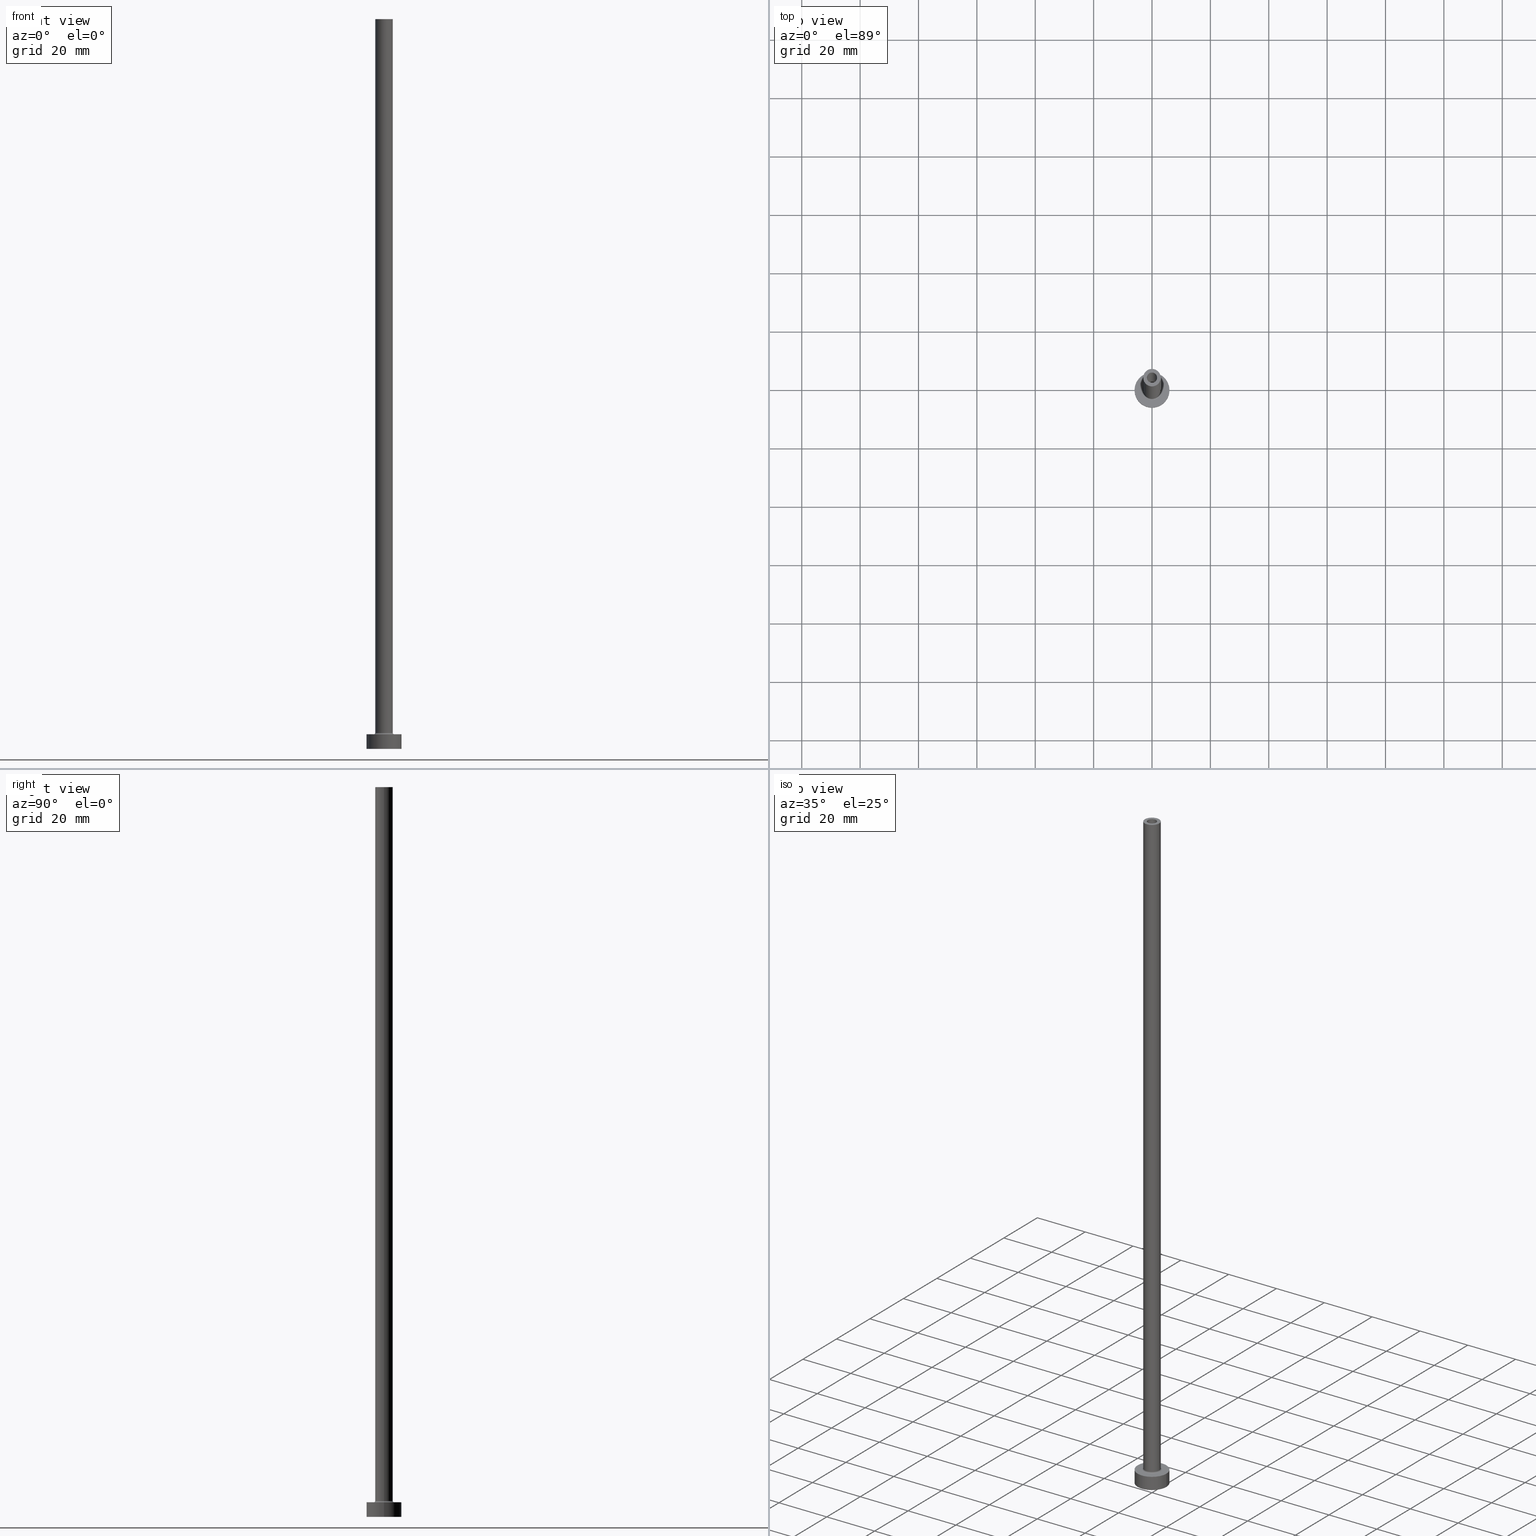
[diagram: canonical four-view strip — front | top / right | iso, engineering-drawing reading convention]
A machine part, canonical four-view strip (front | top / right | iso — engineering-drawing reading convention). The complete STEP part file that produces these views, byte-faithful:
ISO-10303-21;
HEADER;
FILE_DESCRIPTION (( 'STEP AP203' ),
    '1' );
FILE_NAME ('adbf.STEP',
    '2023-02-13T17:50:34',
    ( '' ),
    ( '' ),
    'SwSTEP 2.0',
    'SolidWorks 2019',
    '' );
FILE_SCHEMA (( 'CONFIG_CONTROL_DESIGN' ));
ENDSEC;

DATA;
#1 = DIRECTION ( 'NONE',  ( 0.000000000000000000, 0.000000000000000000, -1.000000000000000000 ) ) ;
#2 = DATE_AND_TIME ( #294, #151 ) ;
#3 = AXIS2_PLACEMENT_3D ( 'NONE', #268, #117, #261 ) ;
#4 = CC_DESIGN_APPROVAL ( #210, ( #372 ) ) ;
#5 = CARTESIAN_POINT ( 'NONE',  ( 0.000000000000000000, 0.000000000000000000, 210.3740115370177932 ) ) ;
#6 = ADVANCED_FACE ( 'NONE', ( #404 ), #184, .F. ) ;
#7 = DIRECTION ( 'NONE',  ( 1.000000000000000000, 0.000000000000000000, 0.000000000000000000 ) ) ;
#8 = ORIENTED_EDGE ( 'NONE', *, *, #103, .F. ) ;
#9 = DIRECTION ( 'NONE',  ( 0.000000000000000000, 0.000000000000000000, 1.000000000000000000 ) ) ;
#10 = VECTOR ( 'NONE', #75, 1000.000000000000000 ) ;
#11 = ADVANCED_FACE ( 'NONE', ( #321 ), #418, .T. ) ;
#12 = ORIENTED_EDGE ( 'NONE', *, *, #64, .F. ) ;
#13 = PLANE ( 'NONE',  #150 ) ;
#14 = DIRECTION ( 'NONE',  ( 0.000000000000000000, 0.000000000000000000, 1.000000000000000000 ) ) ;
#15 = AXIS2_PLACEMENT_3D ( 'NONE', #366, #163, #306 ) ;
#16 =( NAMED_UNIT ( * ) SI_UNIT ( $, .STERADIAN. ) SOLID_ANGLE_UNIT ( ) );
#17 = EDGE_CURVE ( 'NONE', #24, #392, #147, .T. ) ;
#18 = VERTEX_POINT ( 'NONE', #313 ) ;
#19 = CARTESIAN_POINT ( 'NONE',  ( 3.000000000000000444, 3.673940397442060361E-16, 250.0000000000000000 ) ) ;
#20 = DIRECTION ( 'NONE',  ( 1.000000000000000000, 0.000000000000000000, 0.000000000000000000 ) ) ;
#21 = VERTEX_POINT ( 'NONE', #45 ) ;
#22 = APPLICATION_PROTOCOL_DEFINITION ( 'international standard', 'config_control_design', 1994, #206 ) ;
#23 = ORIENTED_EDGE ( 'NONE', *, *, #434, .F. ) ;
#24 = VERTEX_POINT ( 'NONE', #244 ) ;
#25 = CIRCLE ( 'NONE', #56, 6.000000000000000888 ) ;
#26 = CC_DESIGN_DATE_AND_TIME_ASSIGNMENT ( #2, #431, ( #345 ) ) ;
#27 = DIRECTION ( 'NONE',  ( 0.000000000000000000, 0.000000000000000000, 1.000000000000000000 ) ) ;
#28 = EDGE_LOOP ( 'NONE', ( #353, #35 ) ) ;
#29 = PLANE ( 'NONE',  #443 ) ;
#30 = APPROVAL_STATUS ( 'not_yet_approved' ) ;
#31 = CARTESIAN_POINT ( 'NONE',  ( -1.750000000000000000, 0.000000000000000000, 250.0000000000000000 ) ) ;
#32 = PERSON_AND_ORGANIZATION ( #155, #222 ) ;
#33 = CYLINDRICAL_SURFACE ( 'NONE', #201, 1.750000000000000000 ) ;
#34 = EDGE_CURVE ( 'NONE', #273, #18, #47, .T. ) ;
#35 = ORIENTED_EDGE ( 'NONE', *, *, #282, .T. ) ;
#36 = CIRCLE ( 'NONE', #284, 1.750000000000000000 ) ;
#37 = APPROVAL_DATE_TIME ( #189, #141 ) ;
#38 = CYLINDRICAL_SURFACE ( 'NONE', #430, 1.899999999999999911 ) ;
#39 = CARTESIAN_POINT ( 'NONE',  ( 0.000000000000000000, 0.000000000000000000, 250.0000000000000000 ) ) ;
#40 = PERSON_AND_ORGANIZATION ( #155, #222 ) ;
#41 = ORIENTED_EDGE ( 'NONE', *, *, #116, .T. ) ;
#42 = ADVANCED_FACE ( 'NONE', ( #96, #378 ), #208, .T. ) ;
#43 = AXIS2_PLACEMENT_3D ( 'NONE', #292, #188, #185 ) ;
#44 = CARTESIAN_POINT ( 'NONE',  ( 0.000000000000000000, 0.000000000000000000, 5.500000000000005329 ) ) ;
#45 = CARTESIAN_POINT ( 'NONE',  ( -1.899999999999999911, 0.000000000000000000, 0.000000000000000000 ) ) ;
#46 = VERTEX_POINT ( 'NONE', #447 ) ;
#47 = LINE ( 'NONE', #136, #200 ) ;
#48 = CARTESIAN_POINT ( 'NONE',  ( 0.000000000000000000, 0.000000000000000000, 0.000000000000000000 ) ) ;
#49 = EDGE_CURVE ( 'NONE', #325, #78, #400, .T. ) ;
#50 = CIRCLE ( 'NONE', #319, 1.899999999999999911 ) ;
#51 = ORIENTED_EDGE ( 'NONE', *, *, #195, .F. ) ;
#52 = EDGE_LOOP ( 'NONE', ( #420, #217, #449, #51 ) ) ;
#53 = APPROVAL_DATE_TIME ( #456, #300 ) ;
#54 = CC_DESIGN_PERSON_AND_ORGANIZATION_ASSIGNMENT ( #138, #421, ( #372 ) ) ;
#55 = COORDINATED_UNIVERSAL_TIME_OFFSET ( 1, 0, .AHEAD. ) ;
#56 = AXIS2_PLACEMENT_3D ( 'NONE', #433, #365, #362 ) ;
#57 = VECTOR ( 'NONE', #220, 1000.000000000000000 ) ;
#58 = EDGE_LOOP ( 'NONE', ( #183, #346 ) ) ;
#59 = CARTESIAN_POINT ( 'NONE',  ( 0.000000000000000000, 0.000000000000000000, 250.0000000000000000 ) ) ;
#60 = CALENDAR_DATE ( 2023, 13, 2 ) ;
#61 = APPROVAL_STATUS ( 'not_yet_approved' ) ;
#62 = EDGE_LOOP ( 'NONE', ( #105, #132, #8, #455 ) ) ;
#63 = CARTESIAN_POINT ( 'NONE',  ( 1.750000000000000000, 2.143131898507867804E-16, 250.0000000000000000 ) ) ;
#64 = EDGE_CURVE ( 'NONE', #273, #46, #36, .T. ) ;
#65 = DIRECTION ( 'NONE',  ( 0.000000000000000000, 0.000000000000000000, 1.000000000000000000 ) ) ;
#66 = AXIS2_PLACEMENT_3D ( 'NONE', #74, #393, #20 ) ;
#67 = AXIS2_PLACEMENT_3D ( 'NONE', #373, #192, #330 ) ;
#68 = FACE_OUTER_BOUND ( 'NONE', #339, .T. ) ;
#69 = CALENDAR_DATE ( 2023, 13, 2 ) ;
#70 = CARTESIAN_POINT ( 'NONE',  ( -3.500000000000000444, 4.286263797015737088E-16, 5.000000000000002665 ) ) ;
#71 = ORIENTED_EDGE ( 'NONE', *, *, #251, .F. ) ;
#72 = DIRECTION ( 'NONE',  ( -1.000000000000000000, 0.000000000000000000, 0.000000000000000000 ) ) ;
#73 = DIRECTION ( 'NONE',  ( -0.000000000000000000, -0.000000000000000000, -1.000000000000000000 ) ) ;
#74 = CARTESIAN_POINT ( 'NONE',  ( 0.000000000000000000, 0.000000000000000000, 205.0000000000000284 ) ) ;
#75 = DIRECTION ( 'NONE',  ( -0.000000000000000000, -0.000000000000000000, -1.000000000000000000 ) ) ;
#76 = EDGE_CURVE ( 'NONE', #317, #262, #178, .T. ) ;
#77 = CARTESIAN_POINT ( 'NONE',  ( -3.000000000000000444, 0.000000000000000000, 250.0000000000000000 ) ) ;
#78 = VERTEX_POINT ( 'NONE', #89 ) ;
#79 = CARTESIAN_POINT ( 'NONE',  ( 6.000000000000000888, 7.347880794884120722E-16, 5.000000000000000000 ) ) ;
#80 = VECTOR ( 'NONE', #405, 1000.000000000000000 ) ;
#81 = APPROVAL_PERSON_ORGANIZATION ( #389, #300, #248 ) ;
#82 = CYLINDRICAL_SURFACE ( 'NONE', #380, 1.899999999999999911 ) ;
#83 = DIRECTION ( 'NONE',  ( 1.000000000000000000, 0.000000000000000000, 0.000000000000000000 ) ) ;
#84 = COORDINATED_UNIVERSAL_TIME_OFFSET ( 1, 0, .AHEAD. ) ;
#85 = DIRECTION ( 'NONE',  ( -1.000000000000000000, 0.000000000000000000, 0.000000000000000000 ) ) ;
#86 = CARTESIAN_POINT ( 'NONE',  ( 0.000000000000000000, 0.000000000000000000, 250.0000000000000000 ) ) ;
#87 = ADVANCED_FACE ( 'NONE', ( #239 ), #249, .T. ) ;
#88 = CIRCLE ( 'NONE', #3, 1.899999999999999911 ) ;
#89 = CARTESIAN_POINT ( 'NONE',  ( -6.000000000000000888, 0.000000000000000000, 0.000000000000000000 ) ) ;
#90 = DIRECTION ( 'NONE',  ( 0.000000000000000000, 0.000000000000000000, -1.000000000000000000 ) ) ;
#91 = ORIENTED_EDGE ( 'NONE', *, *, #287, .T. ) ;
#92 = EDGE_CURVE ( 'NONE', #111, #390, #265, .T. ) ;
#93 = CARTESIAN_POINT ( 'NONE',  ( 0.000000000000000000, 0.000000000000000000, 5.500000000000005329 ) ) ;
#94 = DIRECTION ( 'NONE',  ( -0.000000000000000000, -0.000000000000000000, -1.000000000000000000 ) ) ;
#95 = DIRECTION ( 'NONE',  ( 1.000000000000000000, 0.000000000000000000, 0.000000000000000000 ) ) ;
#96 = FACE_BOUND ( 'NONE', #280, .T. ) ;
#97 = EDGE_LOOP ( 'NONE', ( #139, #144, #350, #225 ) ) ;
#98 = AXIS2_PLACEMENT_3D ( 'NONE', #157, #398, #289 ) ;
#99 = AXIS2_PLACEMENT_3D ( 'NONE', #182, #65, #120 ) ;
#100 = CARTESIAN_POINT ( 'NONE',  ( 0.000000000000000000, 0.000000000000000000, 0.000000000000000000 ) ) ;
#101 = APPROVAL_STATUS ( 'not_yet_approved' ) ;
#102 = DIRECTION ( 'NONE',  ( 0.000000000000000000, 0.000000000000000000, 1.000000000000000000 ) ) ;
#103 = EDGE_CURVE ( 'NONE', #18, #423, #236, .T. ) ;
#104 = DIRECTION ( 'NONE',  ( 1.000000000000000000, 0.000000000000000000, 0.000000000000000000 ) ) ;
#105 = ORIENTED_EDGE ( 'NONE', *, *, #64, .T. ) ;
#106 = AXIS2_PLACEMENT_3D ( 'NONE', #424, #293, #233 ) ;
#107 = VERTEX_POINT ( 'NONE', #264 ) ;
#108 = COORDINATED_UNIVERSAL_TIME_OFFSET ( 1, 0, .AHEAD. ) ;
#109 = CYLINDRICAL_SURFACE ( 'NONE', #231, 3.000000000000000444 ) ;
#110 = ORIENTED_EDGE ( 'NONE', *, *, #205, .F. ) ;
#111 = VERTEX_POINT ( 'NONE', #197 ) ;
#112 = CARTESIAN_POINT ( 'NONE',  ( 0.000000000000000000, 0.000000000000000000, 0.000000000000000000 ) ) ;
#113 = DIRECTION ( 'NONE',  ( 1.000000000000000000, 0.000000000000000000, 0.000000000000000000 ) ) ;
#114 = AXIS2_PLACEMENT_3D ( 'NONE', #100, #247, #213 ) ;
#115 = LOCAL_TIME ( 18, 50, 34.00000000000000000, #352 ) ;
#116 = EDGE_CURVE ( 'NONE', #390, #78, #125, .T. ) ;
#117 = DIRECTION ( 'NONE',  ( 0.000000000000000000, 0.000000000000000000, 1.000000000000000000 ) ) ;
#118 = COORDINATED_UNIVERSAL_TIME_OFFSET ( 1, 0, .AHEAD. ) ;
#119 = FACE_OUTER_BOUND ( 'NONE', #356, .T. ) ;
#120 = DIRECTION ( 'NONE',  ( 1.000000000000000000, 0.000000000000000000, 0.000000000000000000 ) ) ;
#121 = DIRECTION ( 'NONE',  ( 1.000000000000000000, 0.000000000000000000, 0.000000000000000000 ) ) ;
#122 = AXIS2_PLACEMENT_3D ( 'NONE', #381, #211, #308 ) ;
#123 = DIRECTION ( 'NONE',  ( 1.000000000000000000, 0.000000000000000000, 0.000000000000000000 ) ) ;
#124 = AXIS2_PLACEMENT_3D ( 'NONE', #172, #165, #121 ) ;
#125 = LINE ( 'NONE', #226, #336 ) ;
#126 = DIRECTION ( 'NONE',  ( -1.000000000000000000, 0.000000000000000000, 0.000000000000000000 ) ) ;
#127 = CC_DESIGN_PERSON_AND_ORGANIZATION_ASSIGNMENT ( #214, #162, ( #134 ) ) ;
#128 = ORIENTED_EDGE ( 'NONE', *, *, #282, .F. ) ;
#129 = FACE_OUTER_BOUND ( 'NONE', #288, .T. ) ;
#130 = CARTESIAN_POINT ( 'NONE',  ( 0.000000000000000000, 0.000000000000000000, 205.0000000000000284 ) ) ;
#131 = DESIGN_CONTEXT ( 'detailed design', #355, 'design' ) ;
#132 = ORIENTED_EDGE ( 'NONE', *, *, #329, .T. ) ;
#133 = ADVANCED_FACE ( 'NONE', ( #333, #168 ), #13, .T. ) ;
#134 = PRODUCT_DEFINITION_FORMATION_WITH_SPECIFIED_SOURCE ( 'LIBOVOLN�', '', #156, .NOT_KNOWN. ) ;
#135 = PLANE ( 'NONE',  #67 ) ;
#136 = CARTESIAN_POINT ( 'NONE',  ( -1.750000000000000000, 0.000000000000000000, 250.0000000000000000 ) ) ;
#137 = CIRCLE ( 'NONE', #43, 3.000000000000000444 ) ;
#138 = PERSON_AND_ORGANIZATION ( #155, #222 ) ;
#139 = ORIENTED_EDGE ( 'NONE', *, *, #76, .F. ) ;
#140 = APPROVAL_PERSON_ORGANIZATION ( #40, #141, #257 ) ;
#141 = APPROVAL ( #30, 'NEUR�EN�' ) ;
#142 = ORIENTED_EDGE ( 'NONE', *, *, #354, .T. ) ;
#143 = CARTESIAN_POINT ( 'NONE',  ( 0.000000000000000000, 0.000000000000000000, 0.000000000000000000 ) ) ;
#144 = ORIENTED_EDGE ( 'NONE', *, *, #167, .T. ) ;
#145 = EDGE_LOOP ( 'NONE', ( #385, #451 ) ) ;
#146 = DIRECTION ( 'NONE',  ( 0.000000000000000000, 0.000000000000000000, 1.000000000000000000 ) ) ;
#147 = LINE ( 'NONE', #19, #406 ) ;
#148 = ADVANCED_FACE ( 'NONE', ( #397 ), #369, .T. ) ;
#149 = ORIENTED_EDGE ( 'NONE', *, *, #176, .T. ) ;
#150 = AXIS2_PLACEMENT_3D ( 'NONE', #59, #102, #161 ) ;
#151 = LOCAL_TIME ( 18, 50, 34.00000000000000000, #84 ) ;
#152 = ORIENTED_EDGE ( 'NONE', *, *, #215, .F. ) ;
#153 = CARTESIAN_POINT ( 'NONE',  ( 0.000000000000000000, 0.000000000000000000, 5.500000000000005329 ) ) ;
#154 = ORIENTED_EDGE ( 'NONE', *, *, #158, .F. ) ;
#155 = PERSON ( 'NEUR�EN�', 'NEUR�EN�', 'NEUR�EN�', ('NEUR�EN�'), ('NEUR�EN�'), ('NEUR�EN�') ) ;
#156 = PRODUCT ( 'adbf', 'adbf', '', ( #180 ) ) ;
#157 = CARTESIAN_POINT ( 'NONE',  ( 0.000000000000000000, 0.000000000000000000, 250.0000000000000000 ) ) ;
#158 = EDGE_CURVE ( 'NONE', #262, #21, #50, .T. ) ;
#159 = APPROVAL_PERSON_ORGANIZATION ( #386, #210, #453 ) ;
#160 = DIRECTION ( 'NONE',  ( -0.000000000000000000, -0.000000000000000000, -1.000000000000000000 ) ) ;
#161 = DIRECTION ( 'NONE',  ( 1.000000000000000000, 0.000000000000000000, -0.000000000000000000 ) ) ;
#162 = PERSON_AND_ORGANIZATION_ROLE ( 'creator' ) ;
#163 = DIRECTION ( 'NONE',  ( 1.224646799147353207E-16, 1.000000000000000000, -0.000000000000000000 ) ) ;
#164 = DIRECTION ( 'NONE',  ( 1.000000000000000000, 0.000000000000000000, 0.000000000000000000 ) ) ;
#165 = DIRECTION ( 'NONE',  ( -0.000000000000000000, -0.000000000000000000, -1.000000000000000000 ) ) ;
#166 = DIRECTION ( 'NONE',  ( 1.000000000000000000, 0.000000000000000000, 0.000000000000000000 ) ) ;
#167 = EDGE_CURVE ( 'NONE', #317, #194, #290, .T. ) ;
#168 = FACE_OUTER_BOUND ( 'NONE', #28, .T. ) ;
#169 = CIRCLE ( 'NONE', #327, 6.000000000000000888 ) ;
#170 = MANIFOLD_SOLID_BREP ( 'Odebrat vysunut�m4', #458 ) ;
#171 = CARTESIAN_POINT ( 'NONE',  ( -6.000000000000000888, 0.000000000000000000, 5.000000000000000000 ) ) ;
#172 = CARTESIAN_POINT ( 'NONE',  ( 0.000000000000000000, 0.000000000000000000, 5.000000000000000000 ) ) ;
#173 = DIRECTION ( 'NONE',  ( 0.000000000000000000, 0.000000000000000000, -1.000000000000000000 ) ) ;
#174 = EDGE_CURVE ( 'NONE', #390, #111, #25, .T. ) ;
#175 = EDGE_LOOP ( 'NONE', ( #446, #246, #436, #255 ) ) ;
#176 = EDGE_CURVE ( 'NONE', #111, #325, #426, .T. ) ;
#177 = ORIENTED_EDGE ( 'NONE', *, *, #167, .F. ) ;
#178 = LINE ( 'NONE', #271, #80 ) ;
#179 = ORIENTED_EDGE ( 'NONE', *, *, #176, .F. ) ;
#180 = MECHANICAL_CONTEXT ( 'NONE', #206, 'mechanical' ) ;
#181 = EDGE_CURVE ( 'NONE', #338, #24, #379, .T. ) ;
#182 = CARTESIAN_POINT ( 'NONE',  ( 0.000000000000000000, 0.000000000000000000, 5.500000000000005329 ) ) ;
#183 = ORIENTED_EDGE ( 'NONE', *, *, #174, .T. ) ;
#184 = TOROIDAL_SURFACE ( 'NONE', #442, 3.500000000000000444, 0.5000000000000000000 ) ;
#185 = DIRECTION ( 'NONE',  ( 1.000000000000000000, 0.000000000000000000, 0.000000000000000000 ) ) ;
#186 = CC_DESIGN_APPROVAL ( #141, ( #345 ) ) ;
#187 = ORIENTED_EDGE ( 'NONE', *, *, #329, .F. ) ;
#188 = DIRECTION ( 'NONE',  ( 0.000000000000000000, 0.000000000000000000, 1.000000000000000000 ) ) ;
#189 = DATE_AND_TIME ( #69, #395 ) ;
#190 = DIRECTION ( 'NONE',  ( 0.000000000000000000, 0.000000000000000000, -1.000000000000000000 ) ) ;
#191 = DIRECTION ( 'NONE',  ( -0.000000000000000000, -0.000000000000000000, -1.000000000000000000 ) ) ;
#192 = DIRECTION ( 'NONE',  ( 0.000000000000000000, 0.000000000000000000, 1.000000000000000000 ) ) ;
#193 = DIRECTION ( 'NONE',  ( 1.000000000000000000, 0.000000000000000000, 0.000000000000000000 ) ) ;
#194 = VERTEX_POINT ( 'NONE', #275 ) ;
#195 = EDGE_CURVE ( 'NONE', #392, #107, #450, .T. ) ;
#196 =( NAMED_UNIT ( * ) PLANE_ANGLE_UNIT ( ) SI_UNIT ( $, .RADIAN. ) );
#197 = CARTESIAN_POINT ( 'NONE',  ( 6.000000000000000888, 7.347880794884120722E-16, 5.000000000000000000 ) ) ;
#198 = CARTESIAN_POINT ( 'NONE',  ( -3.000000000000000444, 0.000000000000000000, 250.0000000000000000 ) ) ;
#199 = ORIENTED_EDGE ( 'NONE', *, *, #34, .T. ) ;
#200 = VECTOR ( 'NONE', #410, 1000.000000000000000 ) ;
#201 = AXIS2_PLACEMENT_3D ( 'NONE', #326, #190, #295 ) ;
#202 = ADVANCED_BREP_SHAPE_REPRESENTATION ( 'adbf', ( #170, #252 ), #274 ) ;
#203 = ORIENTED_EDGE ( 'NONE', *, *, #419, .T. ) ;
#204 = DIRECTION ( 'NONE',  ( 1.000000000000000000, 0.000000000000000000, 0.000000000000000000 ) ) ;
#205 = EDGE_CURVE ( 'NONE', #46, #273, #407, .T. ) ;
#206 = APPLICATION_CONTEXT ( 'configuration controlled 3d designs of mechanical parts and assemblies' ) ;
#207 = ORIENTED_EDGE ( 'NONE', *, *, #403, .T. ) ;
#208 = PLANE ( 'NONE',  #122 ) ;
#209 = EDGE_LOOP ( 'NONE', ( #245, #394, #203, #142 ) ) ;
#210 = APPROVAL ( #61, 'NEUR�EN�' ) ;
#211 = DIRECTION ( 'NONE',  ( 0.000000000000000000, 0.000000000000000000, 1.000000000000000000 ) ) ;
#212 = PERSON_AND_ORGANIZATION_ROLE ( 'design_owner' ) ;
#213 = DIRECTION ( 'NONE',  ( 1.000000000000000000, 0.000000000000000000, 0.000000000000000000 ) ) ;
#214 = PERSON_AND_ORGANIZATION ( #155, #222 ) ;
#215 = EDGE_CURVE ( 'NONE', #78, #325, #169, .T. ) ;
#216 = DATE_TIME_ROLE ( 'creation_date' ) ;
#217 = ORIENTED_EDGE ( 'NONE', *, *, #441, .T. ) ;
#218 = DIRECTION ( 'NONE',  ( -1.000000000000000000, 0.000000000000000000, 0.000000000000000000 ) ) ;
#219 = ORIENTED_EDGE ( 'NONE', *, *, #251, .T. ) ;
#220 = DIRECTION ( 'NONE',  ( 0.000000000000000000, 0.000000000000000000, -1.000000000000000000 ) ) ;
#221 = ORIENTED_EDGE ( 'NONE', *, *, #241, .F. ) ;
#222 = ORGANIZATION ( 'NEUR�EN�', 'NEUR�EN�', '' ) ;
#223 = ORIENTED_EDGE ( 'NONE', *, *, #215, .T. ) ;
#224 = ADVANCED_FACE ( 'NONE', ( #129 ), #272, .F. ) ;
#225 = ORIENTED_EDGE ( 'NONE', *, *, #241, .T. ) ;
#226 = CARTESIAN_POINT ( 'NONE',  ( -6.000000000000000888, 0.000000000000000000, 5.000000000000000000 ) ) ;
#227 = CARTESIAN_POINT ( 'NONE',  ( 6.000000000000000888, 7.347880794884120722E-16, 0.000000000000000000 ) ) ;
#228 = PERSON_AND_ORGANIZATION_ROLE ( 'classification_officer' ) ;
#229 = CARTESIAN_POINT ( 'NONE',  ( 1.750000000000000000, 2.143131898507867804E-16, 205.0000000000000284 ) ) ;
#230 = DIRECTION ( 'NONE',  ( -0.000000000000000000, -0.000000000000000000, -1.000000000000000000 ) ) ;
#231 = AXIS2_PLACEMENT_3D ( 'NONE', #324, #260, #72 ) ;
#232 = ORIENTED_EDGE ( 'NONE', *, *, #49, .F. ) ;
#233 = DIRECTION ( 'NONE',  ( 1.000000000000000000, 0.000000000000000000, 0.000000000000000000 ) ) ;
#234 = LINE ( 'NONE', #296, #415 ) ;
#235 = DIRECTION ( 'NONE',  ( 0.000000000000000000, 0.000000000000000000, 1.000000000000000000 ) ) ;
#236 = CIRCLE ( 'NONE', #305, 1.750000000000000000 ) ;
#237 = AXIS2_PLACEMENT_3D ( 'NONE', #93, #291, #444 ) ;
#238 = CC_DESIGN_PERSON_AND_ORGANIZATION_ASSIGNMENT ( #250, #212, ( #156 ) ) ;
#239 = FACE_OUTER_BOUND ( 'NONE', #425, .T. ) ;
#240 = ORIENTED_EDGE ( 'NONE', *, *, #174, .F. ) ;
#241 = EDGE_CURVE ( 'NONE', #21, #262, #367, .T. ) ;
#242 = ORIENTED_EDGE ( 'NONE', *, *, #419, .F. ) ;
#243 = VECTOR ( 'NONE', #230, 1000.000000000000000 ) ;
#244 = CARTESIAN_POINT ( 'NONE',  ( 3.000000000000000444, 3.673940397442060361E-16, 250.0000000000000000 ) ) ;
#245 = ORIENTED_EDGE ( 'NONE', *, *, #17, .F. ) ;
#246 = ORIENTED_EDGE ( 'NONE', *, *, #287, .F. ) ;
#247 = DIRECTION ( 'NONE',  ( 0.000000000000000000, 0.000000000000000000, 1.000000000000000000 ) ) ;
#248 = APPROVAL_ROLE ( '' ) ;
#249 = CYLINDRICAL_SURFACE ( 'NONE', #375, 6.000000000000000888 ) ;
#250 = PERSON_AND_ORGANIZATION ( #155, #222 ) ;
#251 = EDGE_CURVE ( 'NONE', #194, #317, #88, .T. ) ;
#252 = AXIS2_PLACEMENT_3D ( 'NONE', #143, #146, #104 ) ;
#253 = DATE_AND_TIME ( #309, #459 ) ;
#254 = CARTESIAN_POINT ( 'NONE',  ( 0.000000000000000000, 0.000000000000000000, 250.0000000000000000 ) ) ;
#255 = ORIENTED_EDGE ( 'NONE', *, *, #403, .F. ) ;
#256 = EDGE_CURVE ( 'NONE', #423, #18, #276, .T. ) ;
#257 = APPROVAL_ROLE ( '' ) ;
#258 = AXIS2_PLACEMENT_3D ( 'NONE', #254, #1, #332 ) ;
#259 = FACE_OUTER_BOUND ( 'NONE', #62, .T. ) ;
#260 = DIRECTION ( 'NONE',  ( -0.000000000000000000, -0.000000000000000000, -1.000000000000000000 ) ) ;
#261 = DIRECTION ( 'NONE',  ( 1.000000000000000000, 0.000000000000000000, 0.000000000000000000 ) ) ;
#262 = VERTEX_POINT ( 'NONE', #422 ) ;
#263 = CARTESIAN_POINT ( 'NONE',  ( 0.000000000000000000, 0.000000000000000000, 0.000000000000000000 ) ) ;
#264 = CARTESIAN_POINT ( 'NONE',  ( 3.500000000000000444, 0.000000000000000000, 5.000000000000002665 ) ) ;
#265 = CIRCLE ( 'NONE', #429, 6.000000000000000888 ) ;
#266 = LINE ( 'NONE', #198, #10 ) ;
#267 = DIRECTION ( 'NONE',  ( 0.000000000000000000, 0.000000000000000000, 1.000000000000000000 ) ) ;
#268 = CARTESIAN_POINT ( 'NONE',  ( 0.000000000000000000, 0.000000000000000000, 205.0000000000000284 ) ) ;
#269 = UNCERTAINTY_MEASURE_WITH_UNIT (LENGTH_MEASURE( 1.000000000000000082E-05 ), #334, 'distance_accuracy_value', 'NONE');
#270 = DIRECTION ( 'NONE',  ( 1.000000000000000000, 0.000000000000000000, -0.000000000000000000 ) ) ;
#271 = CARTESIAN_POINT ( 'NONE',  ( 1.899999999999999911, 2.326828918379971365E-16, 210.3740115370177932 ) ) ;
#272 = CYLINDRICAL_SURFACE ( 'NONE', #258, 1.750000000000000000 ) ;
#273 = VERTEX_POINT ( 'NONE', #31 ) ;
#274 =( GEOMETRIC_REPRESENTATION_CONTEXT ( 3 ) GLOBAL_UNCERTAINTY_ASSIGNED_CONTEXT ( ( #269 ) ) GLOBAL_UNIT_ASSIGNED_CONTEXT ( ( #334, #196, #16 ) ) REPRESENTATION_CONTEXT ( 'NONE', 'WORKASPACE' ) );
#275 = CARTESIAN_POINT ( 'NONE',  ( -1.899999999999999911, 0.000000000000000000, 205.0000000000000284 ) ) ;
#276 = CIRCLE ( 'NONE', #66, 1.750000000000000000 ) ;
#277 = AXIS2_PLACEMENT_3D ( 'NONE', #44, #9, #193 ) ;
#278 = APPROVAL_DATE_TIME ( #253, #210 ) ;
#279 = EDGE_LOOP ( 'NONE', ( #219, #361, #358, #23 ) ) ;
#280 = EDGE_LOOP ( 'NONE', ( #411, #207 ) ) ;
#281 = VERTEX_POINT ( 'NONE', #70 ) ;
#282 = EDGE_CURVE ( 'NONE', #24, #338, #137, .T. ) ;
#283 = DIRECTION ( 'NONE',  ( -0.000000000000000000, -0.000000000000000000, -1.000000000000000000 ) ) ;
#284 = AXIS2_PLACEMENT_3D ( 'NONE', #348, #14, #204 ) ;
#285 = FACE_OUTER_BOUND ( 'NONE', #304, .T. ) ;
#286 = ORIENTED_EDGE ( 'NONE', *, *, #116, .F. ) ;
#287 = EDGE_CURVE ( 'NONE', #392, #417, #311, .T. ) ;
#288 = EDGE_LOOP ( 'NONE', ( #187, #315, #199, #440 ) ) ;
#289 = DIRECTION ( 'NONE',  ( -1.000000000000000000, 0.000000000000000000, 0.000000000000000000 ) ) ;
#290 = CIRCLE ( 'NONE', #106, 1.899999999999999911 ) ;
#291 = DIRECTION ( 'NONE',  ( 0.000000000000000000, 0.000000000000000000, 1.000000000000000000 ) ) ;
#292 = CARTESIAN_POINT ( 'NONE',  ( 0.000000000000000000, 0.000000000000000000, 250.0000000000000000 ) ) ;
#293 = DIRECTION ( 'NONE',  ( 0.000000000000000000, 0.000000000000000000, 1.000000000000000000 ) ) ;
#294 = CALENDAR_DATE ( 2023, 13, 2 ) ;
#295 = DIRECTION ( 'NONE',  ( -1.000000000000000000, 0.000000000000000000, 0.000000000000000000 ) ) ;
#296 = CARTESIAN_POINT ( 'NONE',  ( -1.899999999999999911, 0.000000000000000000, 210.3740115370177932 ) ) ;
#297 = AXIS2_PLACEMENT_3D ( 'NONE', #377, #301, #438 ) ;
#298 = TOROIDAL_SURFACE ( 'NONE', #237, 3.500000000000000444, 0.5000000000000000000 ) ;
#299 = DIRECTION ( 'NONE',  ( 1.000000000000000000, 0.000000000000000000, 0.000000000000000000 ) ) ;
#300 = APPROVAL ( #101, 'NEUR�EN�' ) ;
#301 = DIRECTION ( 'NONE',  ( 0.000000000000000000, -1.000000000000000000, 0.000000000000000000 ) ) ;
#302 = CARTESIAN_POINT ( 'NONE',  ( 0.000000000000000000, 0.000000000000000000, 5.000000000000000000 ) ) ;
#303 = DIRECTION ( 'NONE',  ( 0.000000000000000000, 0.000000000000000000, 1.000000000000000000 ) ) ;
#304 = EDGE_LOOP ( 'NONE', ( #128, #316, #91, #242 ) ) ;
#305 = AXIS2_PLACEMENT_3D ( 'NONE', #130, #267, #299 ) ;
#306 = DIRECTION ( 'NONE',  ( -1.000000000000000000, 1.224646799147354440E-16, 0.000000000000000000 ) ) ;
#307 = CC_DESIGN_SECURITY_CLASSIFICATION ( #345, ( #134 ) ) ;
#308 = DIRECTION ( 'NONE',  ( 1.000000000000000000, 0.000000000000000000, -0.000000000000000000 ) ) ;
#309 = CALENDAR_DATE ( 2023, 13, 2 ) ;
#310 = EDGE_LOOP ( 'NONE', ( #454, #149, #382, #286 ) ) ;
#311 = CIRCLE ( 'NONE', #99, 3.000000000000000444 ) ;
#312 = CIRCLE ( 'NONE', #277, 3.000000000000000444 ) ;
#313 = CARTESIAN_POINT ( 'NONE',  ( -1.750000000000000000, 0.000000000000000000, 205.0000000000000284 ) ) ;
#314 = EDGE_LOOP ( 'NONE', ( #12, #110 ) ) ;
#315 = ORIENTED_EDGE ( 'NONE', *, *, #205, .T. ) ;
#316 = ORIENTED_EDGE ( 'NONE', *, *, #17, .T. ) ;
#317 = VERTEX_POINT ( 'NONE', #457 ) ;
#318 = ADVANCED_FACE ( 'NONE', ( #285 ), #109, .T. ) ;
#319 = AXIS2_PLACEMENT_3D ( 'NONE', #112, #73, #83 ) ;
#320 = CIRCLE ( 'NONE', #124, 3.500000000000000444 ) ;
#321 = FACE_OUTER_BOUND ( 'NONE', #310, .T. ) ;
#322 = FACE_BOUND ( 'NONE', #145, .T. ) ;
#323 = SECURITY_CLASSIFICATION_LEVEL ( 'unclassified' ) ;
#324 = CARTESIAN_POINT ( 'NONE',  ( 0.000000000000000000, 0.000000000000000000, 250.0000000000000000 ) ) ;
#325 = VERTEX_POINT ( 'NONE', #227 ) ;
#326 = CARTESIAN_POINT ( 'NONE',  ( 0.000000000000000000, 0.000000000000000000, 250.0000000000000000 ) ) ;
#327 = AXIS2_PLACEMENT_3D ( 'NONE', #48, #235, #7 ) ;
#328 = CIRCLE ( 'NONE', #15, 0.4999999999999995559 ) ;
#329 = EDGE_CURVE ( 'NONE', #46, #423, #391, .T. ) ;
#330 = DIRECTION ( 'NONE',  ( 1.000000000000000000, 0.000000000000000000, -0.000000000000000000 ) ) ;
#331 = DIRECTION ( 'NONE',  ( 0.000000000000000000, 0.000000000000000000, 1.000000000000000000 ) ) ;
#332 = DIRECTION ( 'NONE',  ( -1.000000000000000000, 0.000000000000000000, 0.000000000000000000 ) ) ;
#333 = FACE_BOUND ( 'NONE', #314, .T. ) ;
#334 =( LENGTH_UNIT ( ) NAMED_UNIT ( * ) SI_UNIT ( .MILLI., .METRE. ) );
#335 = ADVANCED_FACE ( 'NONE', ( #357 ), #38, .F. ) ;
#336 = VECTOR ( 'NONE', #191, 1000.000000000000000 ) ;
#337 = CIRCLE ( 'NONE', #401, 3.500000000000000444 ) ;
#338 = VERTEX_POINT ( 'NONE', #77 ) ;
#339 = EDGE_LOOP ( 'NONE', ( #71, #177 ) ) ;
#340 = FACE_OUTER_BOUND ( 'NONE', #175, .T. ) ;
#341 = CC_DESIGN_PERSON_AND_ORGANIZATION_ASSIGNMENT ( #32, #399, ( #134 ) ) ;
#342 = EDGE_LOOP ( 'NONE', ( #221, #154 ) ) ;
#343 = DIRECTION ( 'NONE',  ( 1.000000000000000000, 0.000000000000000000, 0.000000000000000000 ) ) ;
#344 = DIRECTION ( 'NONE',  ( 0.000000000000000000, 0.000000000000000000, -1.000000000000000000 ) ) ;
#345 = SECURITY_CLASSIFICATION ( '', '', #323 ) ;
#346 = ORIENTED_EDGE ( 'NONE', *, *, #92, .T. ) ;
#347 = CC_DESIGN_DATE_AND_TIME_ASSIGNMENT ( #416, #216, ( #372 ) ) ;
#348 = CARTESIAN_POINT ( 'NONE',  ( 0.000000000000000000, 0.000000000000000000, 250.0000000000000000 ) ) ;
#349 = CARTESIAN_POINT ( 'NONE',  ( 3.000000000000000444, 3.673940397442060361E-16, 5.500000000000005329 ) ) ;
#350 = ORIENTED_EDGE ( 'NONE', *, *, #434, .T. ) ;
#351 = AXIS2_PLACEMENT_3D ( 'NONE', #359, #387, #218 ) ;
#352 = COORDINATED_UNIVERSAL_TIME_OFFSET ( 1, 0, .AHEAD. ) ;
#353 = ORIENTED_EDGE ( 'NONE', *, *, #181, .T. ) ;
#354 = EDGE_CURVE ( 'NONE', #417, #392, #312, .T. ) ;
#355 = APPLICATION_CONTEXT ( 'configuration controlled 3d designs of mechanical parts and assemblies' ) ;
#356 = EDGE_LOOP ( 'NONE', ( #152, #232 ) ) ;
#357 = FACE_OUTER_BOUND ( 'NONE', #97, .T. ) ;
#358 = ORIENTED_EDGE ( 'NONE', *, *, #158, .T. ) ;
#359 = CARTESIAN_POINT ( 'NONE',  ( 0.000000000000000000, 0.000000000000000000, 5.000000000000000000 ) ) ;
#360 = AXIS2_PLACEMENT_3D ( 'NONE', #86, #303, #95 ) ;
#361 = ORIENTED_EDGE ( 'NONE', *, *, #76, .T. ) ;
#362 = DIRECTION ( 'NONE',  ( 1.000000000000000000, 0.000000000000000000, 0.000000000000000000 ) ) ;
#363 = CARTESIAN_POINT ( 'NONE',  ( 0.000000000000000000, 0.000000000000000000, 205.0000000000000284 ) ) ;
#364 = EDGE_CURVE ( 'NONE', #107, #281, #320, .T. ) ;
#365 = DIRECTION ( 'NONE',  ( 0.000000000000000000, 0.000000000000000000, 1.000000000000000000 ) ) ;
#366 = CARTESIAN_POINT ( 'NONE',  ( -3.500000000000000444, 4.286263797015737088E-16, 5.500000000000005329 ) ) ;
#367 = CIRCLE ( 'NONE', #414, 1.899999999999999911 ) ;
#368 = DIRECTION ( 'NONE',  ( -0.000000000000000000, -0.000000000000000000, -1.000000000000000000 ) ) ;
#369 = CYLINDRICAL_SURFACE ( 'NONE', #98, 3.000000000000000444 ) ;
#370 = SHAPE_DEFINITION_REPRESENTATION ( #452, #202 ) ;
#371 = DIRECTION ( 'NONE',  ( -1.000000000000000000, 0.000000000000000000, 0.000000000000000000 ) ) ;
#372 = PRODUCT_DEFINITION ( 'NEZN�M�', '', #134, #131 ) ;
#373 = CARTESIAN_POINT ( 'NONE',  ( 0.000000000000000000, 0.000000000000000000, 0.000000000000000000 ) ) ;
#374 = CARTESIAN_POINT ( 'NONE',  ( 0.000000000000000000, 0.000000000000000000, 210.3740115370177932 ) ) ;
#375 = AXIS2_PLACEMENT_3D ( 'NONE', #435, #368, #371 ) ;
#376 = LOCAL_TIME ( 18, 50, 34.00000000000000000, #108 ) ;
#377 = CARTESIAN_POINT ( 'NONE',  ( 3.500000000000000444, 0.000000000000000000, 5.500000000000005329 ) ) ;
#378 = FACE_OUTER_BOUND ( 'NONE', #58, .T. ) ;
#379 = CIRCLE ( 'NONE', #437, 3.000000000000000444 ) ;
#380 = AXIS2_PLACEMENT_3D ( 'NONE', #5, #173, #85 ) ;
#381 = CARTESIAN_POINT ( 'NONE',  ( 0.000000000000000000, 0.000000000000000000, 5.000000000000000000 ) ) ;
#382 = ORIENTED_EDGE ( 'NONE', *, *, #49, .T. ) ;
#383 = ADVANCED_FACE ( 'NONE', ( #402 ), #82, .F. ) ;
#384 = CALENDAR_DATE ( 2023, 13, 2 ) ;
#385 = ORIENTED_EDGE ( 'NONE', *, *, #103, .T. ) ;
#386 = PERSON_AND_ORGANIZATION ( #155, #222 ) ;
#387 = DIRECTION ( 'NONE',  ( -0.000000000000000000, -0.000000000000000000, -1.000000000000000000 ) ) ;
#388 = CC_DESIGN_APPROVAL ( #300, ( #134 ) ) ;
#389 = PERSON_AND_ORGANIZATION ( #155, #222 ) ;
#390 = VERTEX_POINT ( 'NONE', #171 ) ;
#391 = LINE ( 'NONE', #63, #57 ) ;
#392 = VERTEX_POINT ( 'NONE', #349 ) ;
#393 = DIRECTION ( 'NONE',  ( 0.000000000000000000, 0.000000000000000000, 1.000000000000000000 ) ) ;
#394 = ORIENTED_EDGE ( 'NONE', *, *, #181, .F. ) ;
#395 = LOCAL_TIME ( 18, 50, 34.00000000000000000, #118 ) ;
#396 = CC_DESIGN_PERSON_AND_ORGANIZATION_ASSIGNMENT ( #461, #228, ( #345 ) ) ;
#397 = FACE_OUTER_BOUND ( 'NONE', #209, .T. ) ;
#398 = DIRECTION ( 'NONE',  ( -0.000000000000000000, -0.000000000000000000, -1.000000000000000000 ) ) ;
#399 = PERSON_AND_ORGANIZATION_ROLE ( 'design_supplier' ) ;
#400 = CIRCLE ( 'NONE', #114, 6.000000000000000888 ) ;
#401 = AXIS2_PLACEMENT_3D ( 'NONE', #409, #94, #343 ) ;
#402 = FACE_OUTER_BOUND ( 'NONE', #279, .T. ) ;
#403 = EDGE_CURVE ( 'NONE', #281, #107, #337, .T. ) ;
#404 = FACE_OUTER_BOUND ( 'NONE', #52, .T. ) ;
#405 = DIRECTION ( 'NONE',  ( 0.000000000000000000, 0.000000000000000000, -1.000000000000000000 ) ) ;
#406 = VECTOR ( 'NONE', #283, 1000.000000000000000 ) ;
#407 = CIRCLE ( 'NONE', #360, 1.750000000000000000 ) ;
#408 = ADVANCED_FACE ( 'NONE', ( #322, #68 ), #29, .F. ) ;
#409 = CARTESIAN_POINT ( 'NONE',  ( 0.000000000000000000, 0.000000000000000000, 5.000000000000000000 ) ) ;
#410 = DIRECTION ( 'NONE',  ( 0.000000000000000000, 0.000000000000000000, -1.000000000000000000 ) ) ;
#411 = ORIENTED_EDGE ( 'NONE', *, *, #364, .T. ) ;
#412 = CARTESIAN_POINT ( 'NONE',  ( -3.000000000000000444, 0.000000000000000000, 5.500000000000005329 ) ) ;
#413 = ADVANCED_FACE ( 'NONE', ( #340 ), #298, .F. ) ;
#414 = AXIS2_PLACEMENT_3D ( 'NONE', #263, #160, #123 ) ;
#415 = VECTOR ( 'NONE', #344, 1000.000000000000000 ) ;
#416 = DATE_AND_TIME ( #384, #376 ) ;
#417 = VERTEX_POINT ( 'NONE', #412 ) ;
#418 = CYLINDRICAL_SURFACE ( 'NONE', #351, 6.000000000000000888 ) ;
#419 = EDGE_CURVE ( 'NONE', #338, #417, #266, .T. ) ;
#420 = ORIENTED_EDGE ( 'NONE', *, *, #354, .F. ) ;
#421 = PERSON_AND_ORGANIZATION_ROLE ( 'creator' ) ;
#422 = CARTESIAN_POINT ( 'NONE',  ( 1.899999999999999911, 2.326828918379971365E-16, 0.000000000000000000 ) ) ;
#423 = VERTEX_POINT ( 'NONE', #229 ) ;
#424 = CARTESIAN_POINT ( 'NONE',  ( 0.000000000000000000, 0.000000000000000000, 205.0000000000000284 ) ) ;
#425 = EDGE_LOOP ( 'NONE', ( #179, #240, #41, #223 ) ) ;
#426 = LINE ( 'NONE', #79, #243 ) ;
#427 = PRODUCT_RELATED_PRODUCT_CATEGORY ( 'detail', '', ( #156 ) ) ;
#428 = DIRECTION ( 'NONE',  ( 0.000000000000000000, 0.000000000000000000, 1.000000000000000000 ) ) ;
#429 = AXIS2_PLACEMENT_3D ( 'NONE', #302, #439, #164 ) ;
#430 = AXIS2_PLACEMENT_3D ( 'NONE', #374, #90, #126 ) ;
#431 = DATE_TIME_ROLE ( 'classification_date' ) ;
#432 = FACE_BOUND ( 'NONE', #342, .T. ) ;
#433 = CARTESIAN_POINT ( 'NONE',  ( 0.000000000000000000, 0.000000000000000000, 5.000000000000000000 ) ) ;
#434 = EDGE_CURVE ( 'NONE', #194, #21, #234, .T. ) ;
#435 = CARTESIAN_POINT ( 'NONE',  ( 0.000000000000000000, 0.000000000000000000, 5.000000000000000000 ) ) ;
#436 = ORIENTED_EDGE ( 'NONE', *, *, #195, .T. ) ;
#437 = AXIS2_PLACEMENT_3D ( 'NONE', #39, #331, #166 ) ;
#438 = DIRECTION ( 'NONE',  ( 0.000000000000000000, 0.000000000000000000, -1.000000000000000000 ) ) ;
#439 = DIRECTION ( 'NONE',  ( 0.000000000000000000, 0.000000000000000000, 1.000000000000000000 ) ) ;
#440 = ORIENTED_EDGE ( 'NONE', *, *, #256, .F. ) ;
#441 = EDGE_CURVE ( 'NONE', #417, #281, #328, .T. ) ;
#442 = AXIS2_PLACEMENT_3D ( 'NONE', #153, #27, #113 ) ;
#443 = AXIS2_PLACEMENT_3D ( 'NONE', #363, #428, #270 ) ;
#444 = DIRECTION ( 'NONE',  ( 1.000000000000000000, 0.000000000000000000, 0.000000000000000000 ) ) ;
#445 = ADVANCED_FACE ( 'NONE', ( #259 ), #33, .F. ) ;
#446 = ORIENTED_EDGE ( 'NONE', *, *, #441, .F. ) ;
#447 = CARTESIAN_POINT ( 'NONE',  ( 1.750000000000000000, 2.143131898507867804E-16, 250.0000000000000000 ) ) ;
#448 = APPLICATION_PROTOCOL_DEFINITION ( 'international standard', 'config_control_design', 1994, #355 ) ;
#449 = ORIENTED_EDGE ( 'NONE', *, *, #364, .F. ) ;
#450 = CIRCLE ( 'NONE', #297, 0.5000000000000004441 ) ;
#451 = ORIENTED_EDGE ( 'NONE', *, *, #256, .T. ) ;
#452 = PRODUCT_DEFINITION_SHAPE ( 'NONE', 'NONE',  #372 ) ;
#453 = APPROVAL_ROLE ( '' ) ;
#454 = ORIENTED_EDGE ( 'NONE', *, *, #92, .F. ) ;
#455 = ORIENTED_EDGE ( 'NONE', *, *, #34, .F. ) ;
#456 = DATE_AND_TIME ( #60, #115 ) ;
#457 = CARTESIAN_POINT ( 'NONE',  ( 1.899999999999999911, 2.326828918379971365E-16, 205.0000000000000284 ) ) ;
#458 = CLOSED_SHELL ( 'NONE', ( #445, #383, #6, #318, #11, #87, #42, #460, #148, #133, #413, #335, #408, #224 ) ) ;
#459 = LOCAL_TIME ( 18, 50, 34.00000000000000000, #55 ) ;
#460 = ADVANCED_FACE ( 'NONE', ( #432, #119 ), #135, .F. ) ;
#461 = PERSON_AND_ORGANIZATION ( #155, #222 ) ;
ENDSEC;
END-ISO-10303-21;
